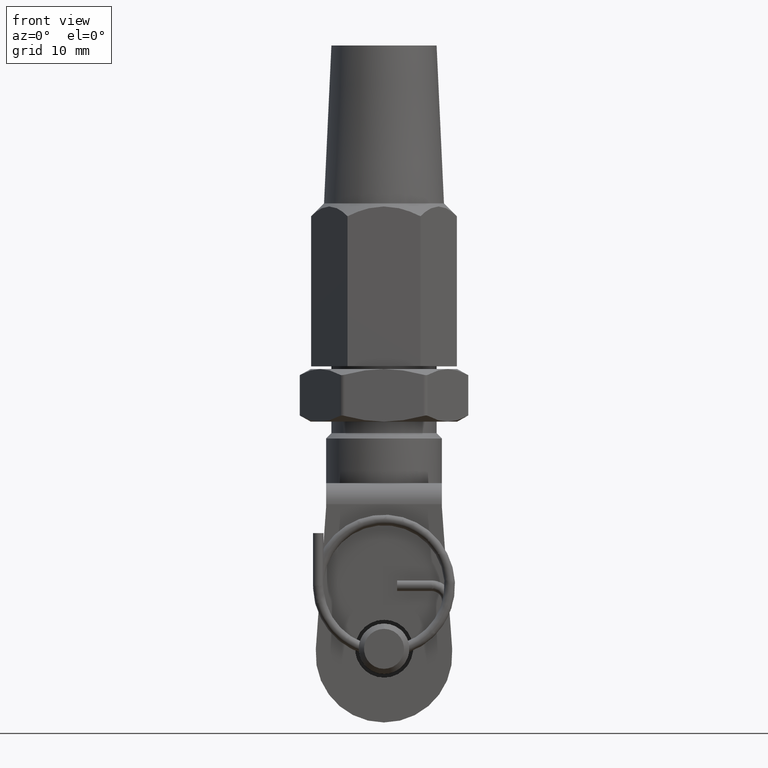
[diagram: clean part render]
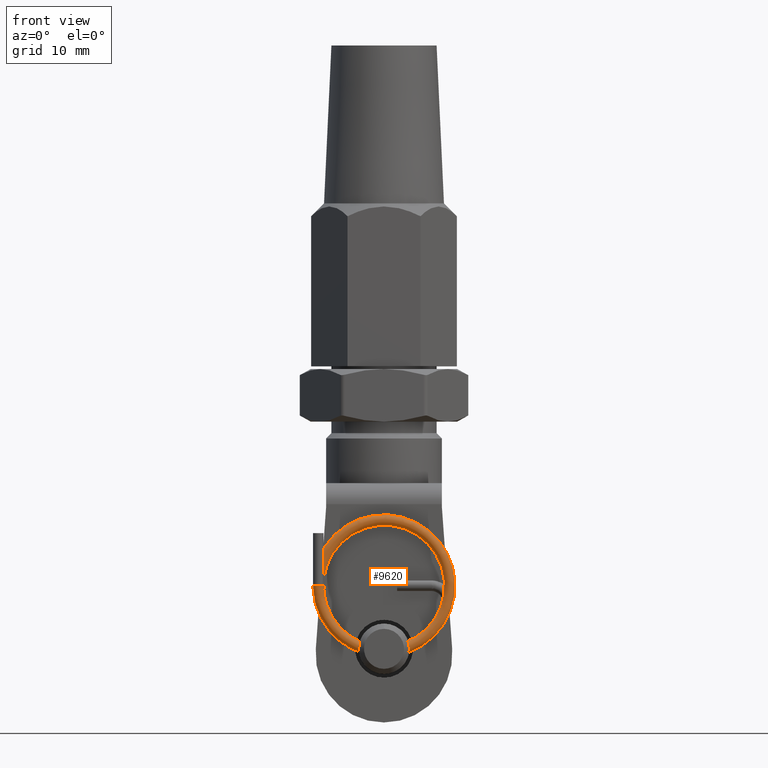
[diagram: same view with one face highlighted and labeled with its STEP entity id]
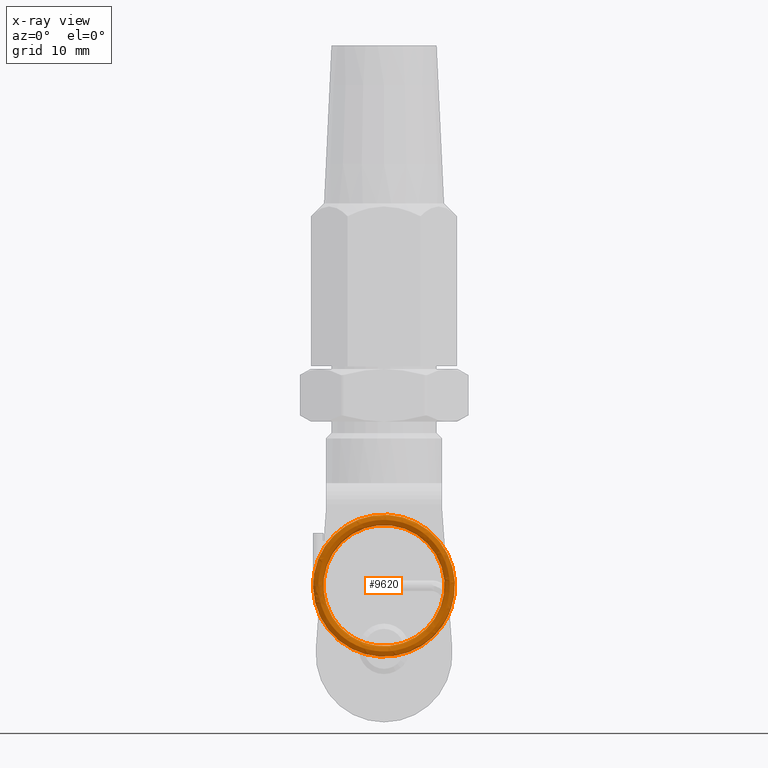
[diagram: x-ray of the same camera — body ghosted, the highlighted face saturated]
A machine part, front view. The second image highlights one B-rep face of the part: STEP entity #9620.
The next image is the same camera in x-ray: the body ghosted, the highlighted face saturated — about 0% of this face is hidden behind the body in this view.
In plain terms, the highlighted face is a freeform B-spline surface patch.
Its self-contained STEP definition (entity closure, byte-faithful):
#31 = CARTESIAN_POINT ( 'NONE',  ( -5.441579064462727500, 1.187529160050266700, 4.062136703513985500 ) ) ;
#47 = CARTESIAN_POINT ( 'NONE',  ( -4.331221511305992400, 0.4375430142686167500, -5.227130384884876700 ) ) ;
#63 = CARTESIAN_POINT ( 'NONE',  ( -0.6041354409410045800, 0.5000362530254085500, -5.752433656295322900 ) ) ;
#120 = CARTESIAN_POINT ( 'NONE',  ( -0.3628299699173395700, -0.9896070769223038700, 5.729623502599239700 ) ) ;
#203 = CARTESIAN_POINT ( 'NONE',  ( 6.219284082843962800, -0.1562625999831957800, 2.727413031565350600 ) ) ;
#219 = CARTESIAN_POINT ( 'NONE',  ( 0.0000000000000000000, 0.0000000000000000000, 5.750000000000000000 ) ) ;
#276 = CARTESIAN_POINT ( 'NONE',  ( -5.900905029850172000, -0.6562202629152964500, -3.360024513274996400 ) ) ;
#294 = CARTESIAN_POINT ( 'NONE',  ( -4.471573903326780700, 1.406285462311923000, -3.670256621723345400 ) ) ;
#295 = CARTESIAN_POINT ( 'NONE',  ( -5.776801956711722100, 0.2500470149679475700, 0.3022119201944986100 ) ) ;
#354 = CARTESIAN_POINT ( 'NONE',  ( 5.440416333594976500, 0.7187067907413397000, -1.966840749809478000 ) ) ;
#375 = CARTESIAN_POINT ( 'NONE',  ( -5.512074271685498200, 1.343743133500562700, -1.751591613145540200 ) ) ;
#425 = CARTESIAN_POINT ( 'NONE',  ( 3.207386461335977900, -0.06258316683072083500, 4.813319007481725400 ) ) ;
#442 = CARTESIAN_POINT ( 'NONE',  ( -3.981554088535226700, 1.125045686027654800, 4.196641099941761200 ) ) ;
#506 = CARTESIAN_POINT ( 'NONE',  ( -1.676113173776027100, -0.5313551425552357500, -5.536609384948985900 ) ) ;
#524 = CARTESIAN_POINT ( 'NONE',  ( -0.3626609497320603700, 1.010392924254964100, 5.729635557015131800 ) ) ;
#582 = CARTESIAN_POINT ( 'NONE',  ( -0.3627454598246998600, 0.01039292366633022500, 5.729629529807186600 ) ) ;
#602 = CARTESIAN_POINT ( 'NONE',  ( 5.440416333594976500, 0.7187067907413397000, -1.966840749809478000 ) ) ;
#606 = CARTESIAN_POINT ( 'NONE',  ( -1.765268013312727400, 0.4999413569686924600, -5.472399125603981700 ) ) ;
#666 = CARTESIAN_POINT ( 'NONE',  ( -5.078715623723190300, 0.3748956862803889400, -2.769901267912807900 ) ) ;
#682 = CARTESIAN_POINT ( 'NONE',  ( -3.707583798705629300, 2.437488582632009000, -4.437692126411943300 ) ) ;
#765 = CARTESIAN_POINT ( 'NONE',  ( -0.4260746672752514000, 1.010396192484729100, 6.726088150731299300 ) ) ;
#833 = CARTESIAN_POINT ( 'NONE',  ( 5.781930597318818400, 0.7812345651901191300, 0.1893963513100968800 ) ) ;
#949 = CARTESIAN_POINT ( 'NONE',  ( -6.592185133618673200, 0.2187768442755374000, 1.627421637519147000 ) ) ;
#1104 = CARTESIAN_POINT ( 'NONE',  ( -3.162533552695734800, 0.4374711890354099900, -6.008794826917685400 ) ) ;
#1169 = CARTESIAN_POINT ( 'NONE',  ( -5.768413662012996200, 2.281293708144756000, 0.4261018016242882900 ) ) ;
#1241 = CARTESIAN_POINT ( 'NONE',  ( 5.073022950310433800, 1.656262608710228100, -4.514580746070233600 ) ) ;
#1259 = CARTESIAN_POINT ( 'NONE',  ( -5.204474502986943900, 1.218784974276901500, 2.523784882517956100 ) ) ;
#1321 = CARTESIAN_POINT ( 'NONE',  ( -6.431391534622179100, 1.312470836483597500, -2.179376830597505900 ) ) ;
#1397 = CARTESIAN_POINT ( 'NONE',  ( 1.410824425741710400, 1.000026196949119300, 6.641891281598598900 ) ) ;
#1414 = CARTESIAN_POINT ( 'NONE',  ( -3.982274766724069000, 0.1250456852404546200, 4.195911854010626400 ) ) ;
#1477 = CARTESIAN_POINT ( 'NONE',  ( -4.568812251733743500, 2.156220269871580900, 5.023456004261397800 ) ) ;
#1560 = CARTESIAN_POINT ( 'NONE',  ( -6.592185133618673200, 0.2187768442755374000, 1.627421637519147000 ) ) ;
#1632 = CARTESIAN_POINT ( 'NONE',  ( 3.043968072372838400, 0.5937692972249085700, -6.070510499310630700 ) ) ;
#1648 = VERTEX_POINT ( 'NONE', #14731 ) ;
#1711 = CARTESIAN_POINT ( 'NONE',  ( -6.471092856655412000, 1.343737129270682800, -2.055319710555468600 ) ) ;
#1729 = CARTESIAN_POINT ( 'NONE',  ( -5.744769922462798400, 1.312419863309216300, -0.6793435576915143300 ) ) ;
#1781 = CARTESIAN_POINT ( 'NONE',  ( -6.562352871896614200, 0.2500251414270849800, 1.746865922445245900 ) ) ;
#1802 = CARTESIAN_POINT ( 'NONE',  ( 4.063354862979712900, 0.9062763232890418400, 4.117531124766744100 ) ) ;
#1847 = CARTESIAN_POINT ( 'NONE',  ( 2.640531181413660300, 0.9687256601209163200, 6.256406136703979800 ) ) ;
#1858 = CARTESIAN_POINT ( 'NONE',  ( -6.742519212140481800, 0.3125257928978171800, -0.8097608054514321400 ) ) ;
#1877 = CARTESIAN_POINT ( 'NONE',  ( 2.592093682690916900, 0.5936650322712939700, -5.171650189083027100 ) ) ;
#1920 = CARTESIAN_POINT ( 'NONE',  ( -6.772441566673308000, 1.281223154571503600, 0.4893273290642596900 ) ) ;
#1932 = CARTESIAN_POINT ( 'NONE',  ( 5.080295877680569600, -0.3437373074609514900, -4.506670577147571200 ) ) ;
#1951 = CARTESIAN_POINT ( 'NONE',  ( -1.776847038075101800, 1.499941355248576700, -5.468575191314405600 ) ) ;
#2012 = CARTESIAN_POINT ( 'NONE',  ( 0.1258732877574118000, 0.03122225646502603200, 6.789443212902812200 ) ) ;
#2090 = CARTESIAN_POINT ( 'NONE',  ( 6.707156331015178300, -0.2500000360073224600, -1.056102408432076900 ) ) ;
#2106 = CARTESIAN_POINT ( 'NONE',  ( 0.4867229057008709000, 1.531152565069917100, -5.764119409685600100 ) ) ;
#2167 = CARTESIAN_POINT ( 'NONE',  ( 5.712561653087942800, 0.7499706779955401800, -0.9047805028993938200 ) ) ;
#2185 = CARTESIAN_POINT ( 'NONE',  ( 3.521191040371833800, 0.6250093466858468400, -4.588477969329735700 ) ) ;
#2240 = CARTESIAN_POINT ( 'NONE',  ( -1.089976470491445000, 0.03122862588380296100, 5.688790872217274400 ) ) ;
#2264 = CARTESIAN_POINT ( 'NONE',  ( -0.6041354409410045800, 0.5000362530254084400, -5.752433656295322900 ) ) ;
#2321 = CARTESIAN_POINT ( 'NONE',  ( 4.058063111661145900, -0.09372363102530623100, 4.122726472269777200 ) ) ;
#2340 = CARTESIAN_POINT ( 'NONE',  ( -4.700216758189054800, 1.156198225385833400, 3.370176859125958700 ) ) ;
#2401 = CARTESIAN_POINT ( 'NONE',  ( -4.701022992481298100, 0.1561982214262561400, 3.369186665805714100 ) ) ;
#2417 = CARTESIAN_POINT ( 'NONE',  ( -5.478225000559529400, 1.312547089879217300, -1.857542548195082200 ) ) ;
#2478 = CARTESIAN_POINT ( 'NONE',  ( -5.769843571821948700, 0.2812936276429117100, 0.4051974145487882200 ) ) ;
#2497 = CARTESIAN_POINT ( 'NONE',  ( -4.240449616144220000, 1.406279342405069700, -5.303512910907827800 ) ) ;
#2578 = CARTESIAN_POINT ( 'NONE',  ( 4.128883592466214800, 1.624983949910775700, -5.390205334262574000 ) ) ;
#2656 = B_SPLINE_CURVE_WITH_KNOTS ( 'NONE', 3,
 ( #2838, #11909, #8567, #15568, #19306, #20987, #4917, #6733, #949, #4685, #13671, #15645, #2757, #17411, #11983, #1104, #15488, #4763, #21141, #4837, #4607, #17566, #6656, #19393, #16489, #21883, #19910, #9074, #18163, #9005, #10903, #9229, #1847, #14492, #12577, #5573, #5276, #8933, #21815, #31, #7395, #16256, #1920, #14336, #10986, #14641, #7091, #21741, #12734, #14566, #18085 ),
 .UNSPECIFIED., .F., .F.,
 ( 4, 1, 1, 1, 1, 1, 1, 1, 1, 1, 1, 1, 1, 1, 1, 1, 1, 1, 1, 1, 1, 1, 1, 1, 1, 1, 1, 1, 1, 1, 1, 1, 1, 1, 1, 1, 1, 1, 1, 1, 1, 1, 1, 1, 1, 1, 1, 1, 4 ),
 ( 0.0000000000000000000, 0.02078566451818509100, 0.04167103792903315700, 0.06250742885531192200, 0.08333457381428606400, 0.1041610744324122500, 0.1250055619324686200, 0.1458287117441812200, 0.1666715678880542100, 0.1874943420413610600, 0.2083390654163878900, 0.2291603406841008800, 0.2500054056506301700, 0.2708267274504983500, 0.2916716580503060400, 0.3124934474862337000, 0.3333375599432847900, 0.3541606275602851600, 0.3750032836527286700, 0.3958282987385753900, 0.4166688684605455200, 0.4374965070321431600, 0.4583343796531516000, 0.4791652709866297500, 0.4999998619717560000, 0.5208344534433141400, 0.5416653461979267200, 0.5625032212701754900, 0.5833308631160126800, 0.6041714372969011500, 0.6249964574715859400, 0.6458391200575672700, 0.6666621945574920900, 0.6875063155560520200, 0.7083281136610012400, 0.7291730548392965100, 0.7499943871204046700, 0.7708394647104771500, 0.7916607522630807500, 0.8125054901759173300, 0.8333282785652845700, 0.8541711514059914200, 0.8749943172571704700, 0.8958388227604090500, 0.9166653416743155700, 0.9374925075621334300, 0.9583289185481412800, 0.9792143130261046200, 1.000000000000000000 ),
 .UNSPECIFIED. ) ;
#2757 = CARTESIAN_POINT ( 'NONE',  ( -5.902166676849730300, 0.3437797329700074700, -3.357507611590548000 ) ) ;
#2838 = CARTESIAN_POINT ( 'NONE',  ( 0.0000000000000000000, 6.123233995736778400E-017, 6.750000000000000900 ) ) ;
#2986 = CARTESIAN_POINT ( 'NONE',  ( 4.068646614298279100, 1.906276277603390100, 4.112335777263713700 ) ) ;
#3064 = CARTESIAN_POINT ( 'NONE',  ( 5.832122125825822700, 1.687491370787316700, -3.476650465302142800 ) ) ;
#3149 = CARTESIAN_POINT ( 'NONE',  ( -1.280267883233952700, 1.031238448019529100, 6.678149746983963900 ) ) ;
#3229 = CARTESIAN_POINT ( 'NONE',  ( -4.340231899913667300, 1.437542848405738000, -5.219574383118118300 ) ) ;
#3306 = CARTESIAN_POINT ( 'NONE',  ( 4.770876570652825800, 0.9062307030830418800, 4.832760712680169500 ) ) ;
#3327 = CARTESIAN_POINT ( 'NONE',  ( -5.729641718034946200, 0.2811563800930856900, -0.7919916739184781300 ) ) ;
#3389 = CARTESIAN_POINT ( 'NONE',  ( 0.0000000000000000000, 6.123233995736775900E-017, 6.750000000000000900 ) ) ;
#3411 = CARTESIAN_POINT ( 'NONE',  ( 0.4910665759594586800, 0.5311525906914155200, -5.763879891249798600 ) ) ;
#3444 = CARTESIAN_POINT ( 'NONE',  ( 5.300006513148680700, 0.8437582648471606600, 2.318605575720139800 ) ) ;
#3468 = CARTESIAN_POINT ( 'NONE',  ( 5.835011938009481400, 0.6874913378976595900, -3.471831340879308700 ) ) ;
#3543 = CARTESIAN_POINT ( 'NONE',  ( -1.280521818907030000, 0.03123844625080474500, 6.678131636447593800 ) ) ;
#3560 = CARTESIAN_POINT ( 'NONE',  ( -2.794561613507868800, 1.468712730558542300, -5.073540742975773700 ) ) ;
#3617 = CARTESIAN_POINT ( 'NONE',  ( -5.447498188632676100, 0.1875291942309464700, 4.054433369613685800 ) ) ;
#3690 = CARTESIAN_POINT ( 'NONE',  ( 5.837901750193143600, -0.3125086949919980700, -3.467012216456475800 ) ) ;
#3706 = CARTESIAN_POINT ( 'NONE',  ( -2.794561613507868800, 1.468712730558542600, -5.073540742975773700 ) ) ;
#3712 = CARTESIAN_POINT ( 'NONE',  ( 5.300006513148680700, 0.8437582648471606600, 2.318605575720139800 ) ) ;
#3764 = CARTESIAN_POINT ( 'NONE',  ( -2.515358378620400800, -0.9375428407908805700, 6.305143298967657900 ) ) ;
#3846 = CARTESIAN_POINT ( 'NONE',  ( -6.167307750147347900, -0.8125256779523151200, 2.842475363280229800 ) ) ;
#3868 = CARTESIAN_POINT ( 'NONE',  ( -3.118548404185114800, 0.09365589173069328900, 4.872413445398431800 ) ) ;
#3893 = DIRECTION ( 'NONE',  ( 0.0000000000000000000, 0.0000000000000000000, -1.000000000000000000 ) ) ;
#3925 = CARTESIAN_POINT ( 'NONE',  ( -1.966650582368936000, -0.5312222131556110200, -6.499780097559080300 ) ) ;
#3943 = CARTESIAN_POINT ( 'NONE',  ( 3.213697587124481300, 0.9374168608231211500, 4.808968417003235600 ) ) ;
#4007 = CARTESIAN_POINT ( 'NONE',  ( -4.396063314682887600, -0.6249514116051371200, -3.759388271354208800 ) ) ;
#4029 = CARTESIAN_POINT ( 'NONE',  ( 4.320481233199958900, 1.656183049034582400, -3.846871557667483000 ) ) ;
#4087 = CARTESIAN_POINT ( 'NONE',  ( -1.679743037384885000, 0.4686448400844398500, -5.535360417540456300 ) ) ;
#4105 = CARTESIAN_POINT ( 'NONE',  ( -0.9790234605027314800, 1.062397054702993700, 5.700760101279437100 ) ) ;
#4135 = CARTESIAN_POINT ( 'NONE',  ( 0.0000000000000000000, 0.0000000000000000000, 6.250000000000000000 ) ) ;
#4169 = CARTESIAN_POINT ( 'NONE',  ( -5.590226924366201700, 0.2498943744827475900, 1.487865457158738900 ) ) ;
#4184 = CARTESIAN_POINT ( 'NONE',  ( -3.611236508358751900, 0.4061433781139247000, -4.518724630796103100 ) ) ;
#4214 = CARTESIAN_POINT ( 'NONE',  ( -2.085864712030765000, 1.499999999999996700, -6.419631484992303100 ) ) ;
#4239 = CARTESIAN_POINT ( 'NONE',  ( -5.253672491716504700, 0.1875214939739838500, 2.421324933074011200 ) ) ;
#4260 = CARTESIAN_POINT ( 'NONE',  ( 4.970694078700016200, 0.6874911657528245400, -2.957096164821417800 ) ) ;
#4321 = CARTESIAN_POINT ( 'NONE',  ( 3.525241303181866600, -0.3749906805285381800, -4.585365328727550400 ) ) ;
#4339 = CARTESIAN_POINT ( 'NONE',  ( -5.584681029427942500, 2.249894311145413300, 1.507551709401241200 ) ) ;
#4414 = CARTESIAN_POINT ( 'NONE',  ( -6.726143406399407000, 1.281276786324140300, -0.9289999423778553300 ) ) ;
#4607 = CARTESIAN_POINT ( 'NONE',  ( 3.043968072372838400, 0.5937692972249085700, -6.070510499310630700 ) ) ;
#4685 = CARTESIAN_POINT ( 'NONE',  ( -6.781384187061188000, 0.2499748927732847500, 0.3562919820453353500 ) ) ;
#4763 = CARTESIAN_POINT ( 'NONE',  ( -0.7106834533093400200, 0.4999738046348306000, -6.752782715170990700 ) ) ;
#4826 = CARTESIAN_POINT ( 'NONE',  ( 0.1214243924504941100, 2.031296488606427500, 5.783387056670939300 ) ) ;
#4837 = CARTESIAN_POINT ( 'NONE',  ( 1.842310656715859600, 0.5624780457383109500, -6.535229589347594900 ) ) ;
#4904 = CARTESIAN_POINT ( 'NONE',  ( 1.837892090312905200, 1.562478065972044700, -6.536500023734348000 ) ) ;
#4917 = CARTESIAN_POINT ( 'NONE',  ( -5.519246302094050100, 0.1562628704106008000, 3.954402877894930500 ) ) ;
#4978 = CARTESIAN_POINT ( 'NONE',  ( -4.478896364657767700, 2.406285539889395900, -3.661389053334111600 ) ) ;
#5056 = CARTESIAN_POINT ( 'NONE',  ( -5.973171136515426300, 2.375004939583249500, -3.230322996337066300 ) ) ;
#5134 = CARTESIAN_POINT ( 'NONE',  ( -4.575767142718350800, 1.156220266169491400, 5.017049322567236100 ) ) ;
#5155 = CARTESIAN_POINT ( 'NONE',  ( -4.398096962512643600, 0.3750485891087351200, -3.757091625925831100 ) ) ;
#5215 = CARTESIAN_POINT ( 'NONE',  ( -6.474398725223028200, 2.343737170385926700, -2.044843550030227300 ) ) ;
#5276 = CARTESIAN_POINT ( 'NONE',  ( -2.390971971781386400, 1.093720647268486600, 6.355617985894871100 ) ) ;
#5291 = CARTESIAN_POINT ( 'NONE',  ( -5.441579064462727500, 1.187529160050266700, 4.062136703513985500 ) ) ;
#5361 = CARTESIAN_POINT ( 'NONE',  ( -5.164140359918112800, 0.3749704526932209300, -4.409213065106646600 ) ) ;
#5434 = CARTESIAN_POINT ( 'NONE',  ( 0.0000000000000000000, -1.000000000000001300, 5.750000000000000000 ) ) ;
#5456 = AXIS2_PLACEMENT_3D ( 'NONE', #4135, #20363, #3893 ) ;
#5488 = EDGE_CURVE ( 'NONE', #1648, #9729, #7800, .T. ) ;
#5513 = CARTESIAN_POINT ( 'NONE',  ( -6.592751122351995000, -0.7812231576705021000, 1.625720104348042700 ) ) ;
#5573 = CARTESIAN_POINT ( 'NONE',  ( -1.150928501685068800, 1.062528812855611200, 6.691980074444464000 ) ) ;
#5590 = CARTESIAN_POINT ( 'NONE',  ( -4.235437301621599800, -0.5937206381166815200, -5.307888915578568700 ) ) ;
#5675 = CARTESIAN_POINT ( 'NONE',  ( -3.556784159719542000, 0.1250295587486781600, 5.784526477061084500 ) ) ;
#5689 = CARTESIAN_POINT ( 'NONE',  ( -3.698573410097952200, 1.437488748494887900, -4.445248128178698200 ) ) ;
#5690 = CARTESIAN_POINT ( 'NONE',  ( -3.982274766724069000, 0.1250456852404546200, 4.195911854010626400 ) ) ;
#5747 = CARTESIAN_POINT ( 'NONE',  ( 2.633215280549916900, -0.03127430232641117300, 6.259455729474644200 ) ) ;
#5766 = CARTESIAN_POINT ( 'NONE',  ( 2.587697699229396500, 1.593664998108858600, -5.173726479975989000 ) ) ;
#5830 = CARTESIAN_POINT ( 'NONE',  ( 0.4954102462180465200, -0.4688473836870859500, -5.763640372813998900 ) ) ;
#5852 = CARTESIAN_POINT ( 'NONE',  ( 4.967804266516354900, 1.687491198642482100, -2.961915289244252000 ) ) ;
#5905 = CARTESIAN_POINT ( 'NONE',  ( -5.508768403117876700, 0.3437430923853184700, -1.762067773670780200 ) ) ;
#5922 = CARTESIAN_POINT ( 'NONE',  ( -5.204474502986943900, 1.218784974276901500, 2.523784882517956100 ) ) ;
#5983 = CARTESIAN_POINT ( 'NONE',  ( 5.713565699973643500, -0.2500293583846207000, -0.8987327506098741200 ) ) ;
#6000 = CARTESIAN_POINT ( 'NONE',  ( 2.592093682690916900, 0.5936650322712939700, -5.171650189083027100 ) ) ;
#6064 = CARTESIAN_POINT ( 'NONE',  ( -4.398096962512643600, 0.3750485891087351200, -3.757091625925831100 ) ) ;
#6083 = CARTESIAN_POINT ( 'NONE',  ( -5.587453976897068100, 1.249894342814080100, 1.497708583279989900 ) ) ;
#6091 = CARTESIAN_POINT ( 'NONE',  ( -1.776847038075101800, 1.499941355248576700, -5.468575191314405600 ) ) ;
#6148 = CARTESIAN_POINT ( 'NONE',  ( -3.118548404185114800, 0.09365589173069328900, 4.872413445398431800 ) ) ;
#6166 = CARTESIAN_POINT ( 'NONE',  ( 5.642600073833265600, 1.812450227232793600, 1.269843925362312800 ) ) ;
#6241 = CARTESIAN_POINT ( 'NONE',  ( -1.788426062837476600, 2.499941353528463600, -5.464751257024829600 ) ) ;
#6586 = CARTESIAN_POINT ( 'NONE',  ( -3.611236508358752300, 0.4061433781139247000, -4.518724630796103100 ) ) ;
#6645 = CARTESIAN_POINT ( 'NONE',  ( -6.591619144885353200, 1.218776846221576700, 1.629123170690252500 ) ) ;
#6656 = CARTESIAN_POINT ( 'NONE',  ( 5.076659413995502100, 0.6562626506246381800, -4.510625661608902000 ) ) ;
#6723 = CARTESIAN_POINT ( 'NONE',  ( 0.1427437367318084000, 2.031222203956173400, 6.789197826762976000 ) ) ;
#6733 = CARTESIAN_POINT ( 'NONE',  ( -6.166688178066353400, 0.1874743094842342100, 2.843884023433202100 ) ) ;
#6793 = CARTESIAN_POINT ( 'NONE',  ( 6.224815902813176600, 1.843737299820321000, 2.714758799226693900 ) ) ;
#6801 = VERTEX_POINT ( 'NONE', #14396 ) ;
#6872 = CARTESIAN_POINT ( 'NONE',  ( -4.674523548757377100, 0.1249950493702555900, 4.925860726716836200 ) ) ;
#6890 = CARTESIAN_POINT ( 'NONE',  ( 0.0000000000000000000, 0.0000000000000000000, 5.750000000000000000 ) ) ;
#6951 = CARTESIAN_POINT ( 'NONE',  ( -0.7106834533093400200, 0.4999738046348305400, -6.752782715170990700 ) ) ;
#7031 = CARTESIAN_POINT ( 'NONE',  ( -3.162533552695734800, 0.4374711890354099900, -6.008794826917685400 ) ) ;
#7047 = CARTESIAN_POINT ( 'NONE',  ( -5.587453976897068100, 1.249894342814080100, 1.497708583279989700 ) ) ;
#7091 = CARTESIAN_POINT ( 'NONE',  ( -5.249871242769508200, 1.406223760836305100, -4.307963377621542900 ) ) ;
#7105 = CARTESIAN_POINT ( 'NONE',  ( -6.743677460552943300, 1.312525692545144700, -0.7990830678339943000 ) ) ;
#7126 = CARTESIAN_POINT ( 'NONE',  ( 4.766768929291375300, 0.8749320095637024300, 3.275794623423208900 ) ) ;
#7181 = CARTESIAN_POINT ( 'NONE',  ( 6.787465537567443100, 0.7812454706077982500, 0.2220352492838381100 ) ) ;
#7201 = CARTESIAN_POINT ( 'NONE',  ( 3.213697587124481300, 0.9374168608231211500, 4.808968417003235600 ) ) ;
#7254 = CARTESIAN_POINT ( 'NONE',  ( -1.280775754580107700, -0.9687615555179196500, 6.678113525911222800 ) ) ;
#7276 = CARTESIAN_POINT ( 'NONE',  ( 1.203032054334925500, 0.9999051038055339900, 5.657577795917790200 ) ) ;
#7331 = CARTESIAN_POINT ( 'NONE',  ( 6.620884729592963100, -0.1874913740074923800, 1.505283438486918500 ) ) ;
#7395 = CARTESIAN_POINT ( 'NONE',  ( -6.108980775299485800, 1.218723213583165800, 2.964149944835630500 ) ) ;
#7410 = CARTESIAN_POINT ( 'NONE',  ( -2.144385526082222400, -0.9375473856226662600, 5.370431626564336400 ) ) ;
#7489 = CARTESIAN_POINT ( 'NONE',  ( -1.090230406164522000, -0.9687713758849212400, 5.688772761680902500 ) ) ;
#7563 = CARTESIAN_POINT ( 'NONE',  ( -6.773156521577782900, 0.2812231143205806700, 0.4788751355265094500 ) ) ;
#7583 = CARTESIAN_POINT ( 'NONE',  ( 1.203032054334925500, 0.9999051038055339900, 5.657577795917790200 ) ) ;
#7648 = CARTESIAN_POINT ( 'NONE',  ( 1.195059973423136000, -9.491411251417457900E-005, 5.659399372309145800 ) ) ;
#7668 = CARTESIAN_POINT ( 'NONE',  ( 4.063354862979712900, 0.9062763232890418400, 4.117531124766744100 ) ) ;
#7683 = FACE_OUTER_BOUND ( 'NONE', #7822, .T. ) ;
#7723 = CARTESIAN_POINT ( 'NONE',  ( 4.973583890883674900, -0.3125088671368328500, -2.952277040398584100 ) ) ;
#7744 = CARTESIAN_POINT ( 'NONE',  ( -5.028449006423197300, 0.3436421721271117900, -2.858813384152024500 ) ) ;
#7800 = CIRCLE ( 'NONE', #5456, 0.5000000000000004400 ) ;
#7807 = CARTESIAN_POINT ( 'NONE',  ( -4.640435634080177800, 0.1873942960856011000, 3.453805558228667300 ) ) ;
#7822 = EDGE_LOOP ( 'NONE', ( #18754, #22752, #21732, #16395 ) ) ;
#7828 = CARTESIAN_POINT ( 'NONE',  ( -5.614644336910297200, 1.218647688145964200, 1.389153391318913400 ) ) ;
#7882 = CARTESIAN_POINT ( 'NONE',  ( 4.324117696885025500, 0.6561830909489927400, -3.842916473206150000 ) ) ;
#7901 = CARTESIAN_POINT ( 'NONE',  ( -4.398096962512643600, 0.3750485891087351200, -3.757091625925831100 ) ) ;
#7964 = CARTESIAN_POINT ( 'NONE',  ( -1.765268013312727400, 0.4999413569686903500, -5.472399125603981700 ) ) ;
#7984 = CARTESIAN_POINT ( 'NONE',  ( 3.039572088911319400, 1.593769263062472900, -6.072586790203592600 ) ) ;
#8062 = CARTESIAN_POINT ( 'NONE',  ( -3.013917780156420500, 2.124892759045744500, 4.936984192077078500 ) ) ;
#8200 =( BOUNDED_SURFACE ( )  B_SPLINE_SURFACE ( 3, 3, ( 
 ( #219, #16367, #12913, #20252, #3868, #5690, #18405, #9340, #22081, #295, #14442, #16287, #7744, #7901, #4184, #16917, #16990, #2264, #11327, #9576, #6000, #2185, #9422, #4260, #602, #18731, #22401, #18495, #15072, #20565, #7668, #3943, #11255, #7583, #14992, #4105, #16839, #9656, #11410, #11494, #5922, #6083, #18656, #20412, #375, #22322, #9506, #20490, #20335, #16686, #18812 ),
 ( #22244, #524, #16754, #13239, #20642, #442, #2340, #9732, #7828, #13315, #22487, #2417, #13161, #15152, #11567, #14916, #22162, #12995, #2106, #14840, #5766, #13076, #4029, #5852, #18570, #15226, #22565, #6166, #13890, #15714, #2986, #21291, #23055, #23135, #4826, #17709, #17553, #8062, #11642, #18890, #18973, #4339, #1169, #10293, #17154, #15306, #4978, #682, #21374, #14039, #6241 ),
 ( #19384, #765, #3149, #10211, #10378, #12199, #20807, #17068, #6645, #8555, #4414, #1321, #8472, #21211, #2497, #12122, #13964, #10455, #23216, #4904, #7984, #2578, #1241, #3064, #20717, #9814, #15875, #13488, #6793, #19534, #22972, #15794, #17627, #12053, #6723, #13398, #19456, #8637, #1477, #18098, #17787, #21454, #21602, #10698, #5215, #5056, #17867, #12441, #10539, #23449, #15953 ),
 ( #3389, #19851, #3543, #17946, #14357, #6872, #19611, #21681, #1560, #12282, #10772, #10848, #16270, #5361, #12520, #7031, #8726, #6951, #14274, #23298, #1632, #12365, #10618, #3468, #16119, #8947, #7181, #19772, #16191, #14191, #3306, #23524, #8879, #1397, #12595, #14116, #19924, #9020, #5134, #5291, #18026, #16039, #19696, #7105, #1711, #14428, #21753, #3229, #8801, #21531, #23378 ),
 ( #14821, #21986, #7254, #3764, #20318, #14578, #11156, #3846, #5513, #16426, #12822, #22143, #276, #20153, #5590, #14657, #3925, #10917, #18241, #12979, #11074, #9087, #1932, #3690, #9405, #2090, #20231, #7331, #203, #12743, #16576, #16665, #5747, #9241, #2012, #18475, #20074, #5675, #9168, #3617, #16503, #1781, #7563, #1858, #16354, #21899, #18314, #47, #23594, #11004, #9324 ),
 ( #5434, #120, #7489, #7410, #22061, #12896, #14735, #14504, #18391, #12674, #18172, #19998, #21827, #4007, #13137, #15055, #506, #16740, #5830, #13382, #18547, #4321, #9713, #7723, #20543, #5983, #20470, #22385, #20701, #13298, #2321, #425, #17048, #7648, #20395, #9638, #13218, #9796, #11550, #7807, #16897, #4169, #2478, #22224, #5905, #666, #11475, #9484, #18714, #14975, #7964 ),
 ( #16819, #582, #2240, #15131, #6148, #22467, #2401, #4239, #18872, #18634, #16976, #9557, #14896, #6064, #13057, #15205, #4087, #11310, #22303, #18796, #11393, #11234, #7882, #20624, #354, #2167, #833, #15844, #3444, #15107, #15819, #12386, #14680, #14844, #10202, #19220, #20520, #19863, #8653, #14748, #1259, #11173, #12691, #23612, #9339, #14522, #294, #5689, #3706, #16522, #1951 ) ),
 .UNSPECIFIED., .T., .F., .F. ) 
 B_SPLINE_SURFACE_WITH_KNOTS ( ( 4, 3, 4 ),
 ( 4, 1, 1, 1, 1, 1, 1, 1, 1, 1, 1, 1, 1, 1, 1, 1, 1, 1, 1, 1, 1, 1, 1, 1, 1, 1, 1, 1, 1, 1, 1, 1, 1, 1, 1, 1, 1, 1, 1, 1, 1, 1, 1, 1, 1, 1, 1, 1, 4 ),
 ( 0.0000000000000000000, 0.5000000000000000000, 1.000000000000000000 ),
 ( 0.0000000000000000000, 0.02078566451818509100, 0.04167103792903315700, 0.06250742885531192200, 0.08333457381428606400, 0.1041610744324122500, 0.1250055619324686200, 0.1458287117441812200, 0.1666715678880542100, 0.1874943420413610600, 0.2083390654163878900, 0.2291603406841008800, 0.2500054056506301700, 0.2708267274504983500, 0.2916716580503060400, 0.3124934474862337000, 0.3333375599432847900, 0.3541606275602851600, 0.3750032836527286700, 0.3958282987385753900, 0.4166688684605455200, 0.4374965070321431600, 0.4583343796531516000, 0.4791652709866297500, 0.4999998619717560000, 0.5208344534433141400, 0.5416653461979267200, 0.5625032212701754900, 0.5833308631160126800, 0.6041714372969011500, 0.6249964574715859400, 0.6458391200575672700, 0.6666621945574920900, 0.6875063155560520200, 0.7083281136610012400, 0.7291730548392965100, 0.7499943871204046700, 0.7708394647104771500, 0.7916607522630807500, 0.8125054901759173300, 0.8333282785652845700, 0.8541711514059914200, 0.8749943172571704700, 0.8958388227604090500, 0.9166653416743155700, 0.9374925075621334300, 0.9583289185481412800, 0.9792143130261046200, 1.000000000000000000 ),
 .UNSPECIFIED. ) 
 GEOMETRIC_REPRESENTATION_ITEM ( )  RATIONAL_B_SPLINE_SURFACE ( (
 ( 1.000000000000000000, 1.000000000000000000, 0.9999999999999997800, 1.000000000000000200, 0.9999999999999997800, 1.000000000000000000, 1.000000000000000000, 1.000000000000000000, 1.000000000000000200, 0.9999999999999997800, 1.000000000000000200, 1.000000000000000000, 1.000000000000000200, 0.9999999999999997800, 1.000000000000000400, 1.000000000000000200, 0.9999999999999996700, 1.000000000000000200, 0.9999999999999997800, 1.000000000000000200, 1.000000000000000000, 1.000000000000000000, 1.000000000000000000, 1.000000000000000200, 0.9999999999999997800, 1.000000000000000200, 1.000000000000000000, 1.000000000000000000, 1.000000000000000000, 1.000000000000000000, 0.9999999999999997800, 1.000000000000000200, 0.9999999999999997800, 1.000000000000000200, 0.9999999999999997800, 1.000000000000000400, 1.000000000000000400, 0.9999999999999997800, 1.000000000000000000, 1.000000000000000000, 0.9999999999999997800, 1.000000000000000200, 1.000000000000000200, 1.000000000000000200, 0.9999999999999997800, 1.000000000000000200, 0.9999999999999997800, 0.9999999999999997800, 1.000000000000000200, 1.000000000000000000, 1.000000000000000000),
 ( 0.3333333333333333700, 0.3333333333333333700, 0.3333333333333333100, 0.3333333333333334300, 0.3333333333333333100, 0.3333333333333334300, 0.3333333333333333700, 0.3333333333333333100, 0.3333333333333334800, 0.3333333333333333100, 0.3333333333333334300, 0.3333333333333333100, 0.3333333333333334300, 0.3333333333333333700, 0.3333333333333334300, 0.3333333333333334300, 0.3333333333333332600, 0.3333333333333334300, 0.3333333333333333100, 0.3333333333333334800, 0.3333333333333333100, 0.3333333333333333700, 0.3333333333333333700, 0.3333333333333334300, 0.3333333333333333700, 0.3333333333333333700, 0.3333333333333334300, 0.3333333333333333100, 0.3333333333333333700, 0.3333333333333334300, 0.3333333333333333100, 0.3333333333333334800, 0.3333333333333332600, 0.3333333333333334800, 0.3333333333333333100, 0.3333333333333334800, 0.3333333333333335900, 0.3333333333333332600, 0.3333333333333333700, 0.3333333333333333100, 0.3333333333333333700, 0.3333333333333333100, 0.3333333333333334800, 0.3333333333333334300, 0.3333333333333333700, 0.3333333333333333700, 0.3333333333333333100, 0.3333333333333332600, 0.3333333333333334300, 0.3333333333333333700, 0.3333333333333333700),
 ( 0.3333333333333333700, 0.3333333333333333700, 0.3333333333333333100, 0.3333333333333334300, 0.3333333333333333100, 0.3333333333333334300, 0.3333333333333333700, 0.3333333333333333100, 0.3333333333333334800, 0.3333333333333333100, 0.3333333333333334300, 0.3333333333333333100, 0.3333333333333334300, 0.3333333333333333700, 0.3333333333333334300, 0.3333333333333334300, 0.3333333333333332600, 0.3333333333333334300, 0.3333333333333333100, 0.3333333333333334800, 0.3333333333333333100, 0.3333333333333333700, 0.3333333333333333700, 0.3333333333333334300, 0.3333333333333333700, 0.3333333333333333700, 0.3333333333333334300, 0.3333333333333333100, 0.3333333333333333700, 0.3333333333333334300, 0.3333333333333333100, 0.3333333333333334800, 0.3333333333333332600, 0.3333333333333334800, 0.3333333333333333100, 0.3333333333333334800, 0.3333333333333335900, 0.3333333333333332600, 0.3333333333333333700, 0.3333333333333333100, 0.3333333333333333700, 0.3333333333333333100, 0.3333333333333334800, 0.3333333333333334300, 0.3333333333333333700, 0.3333333333333333700, 0.3333333333333333100, 0.3333333333333332600, 0.3333333333333334300, 0.3333333333333333700, 0.3333333333333333700),
 ( 1.000000000000000000, 1.000000000000000000, 0.9999999999999997800, 1.000000000000000200, 0.9999999999999997800, 1.000000000000000000, 1.000000000000000000, 1.000000000000000000, 1.000000000000000200, 0.9999999999999997800, 1.000000000000000200, 1.000000000000000000, 1.000000000000000200, 0.9999999999999997800, 1.000000000000000400, 1.000000000000000200, 0.9999999999999996700, 1.000000000000000200, 0.9999999999999997800, 1.000000000000000200, 1.000000000000000000, 1.000000000000000000, 1.000000000000000000, 1.000000000000000200, 0.9999999999999997800, 1.000000000000000200, 1.000000000000000000, 1.000000000000000000, 1.000000000000000000, 1.000000000000000000, 0.9999999999999997800, 1.000000000000000200, 0.9999999999999997800, 1.000000000000000200, 0.9999999999999997800, 1.000000000000000400, 1.000000000000000400, 0.9999999999999997800, 1.000000000000000000, 1.000000000000000000, 0.9999999999999997800, 1.000000000000000200, 1.000000000000000200, 1.000000000000000200, 0.9999999999999997800, 1.000000000000000200, 0.9999999999999997800, 0.9999999999999997800, 1.000000000000000200, 1.000000000000000000, 1.000000000000000000),
 ( 0.3333333333333333700, 0.3333333333333333700, 0.3333333333333333100, 0.3333333333333334300, 0.3333333333333333100, 0.3333333333333334300, 0.3333333333333333700, 0.3333333333333333100, 0.3333333333333334800, 0.3333333333333333100, 0.3333333333333334300, 0.3333333333333333100, 0.3333333333333334300, 0.3333333333333333700, 0.3333333333333334300, 0.3333333333333334300, 0.3333333333333332600, 0.3333333333333334300, 0.3333333333333333100, 0.3333333333333334800, 0.3333333333333333100, 0.3333333333333333700, 0.3333333333333333700, 0.3333333333333334300, 0.3333333333333333700, 0.3333333333333333700, 0.3333333333333334300, 0.3333333333333333100, 0.3333333333333333700, 0.3333333333333334300, 0.3333333333333333100, 0.3333333333333334800, 0.3333333333333332600, 0.3333333333333334800, 0.3333333333333333100, 0.3333333333333334800, 0.3333333333333335900, 0.3333333333333332600, 0.3333333333333333700, 0.3333333333333333100, 0.3333333333333333700, 0.3333333333333333100, 0.3333333333333334800, 0.3333333333333334300, 0.3333333333333333700, 0.3333333333333333700, 0.3333333333333333100, 0.3333333333333332600, 0.3333333333333334300, 0.3333333333333333700, 0.3333333333333333700),
 ( 0.3333333333333333700, 0.3333333333333333700, 0.3333333333333333100, 0.3333333333333334300, 0.3333333333333333100, 0.3333333333333334300, 0.3333333333333333700, 0.3333333333333333100, 0.3333333333333334800, 0.3333333333333333100, 0.3333333333333334300, 0.3333333333333333100, 0.3333333333333334300, 0.3333333333333333700, 0.3333333333333334300, 0.3333333333333334300, 0.3333333333333332600, 0.3333333333333334300, 0.3333333333333333100, 0.3333333333333334800, 0.3333333333333333100, 0.3333333333333333700, 0.3333333333333333700, 0.3333333333333334300, 0.3333333333333333700, 0.3333333333333333700, 0.3333333333333334300, 0.3333333333333333100, 0.3333333333333333700, 0.3333333333333334300, 0.3333333333333333100, 0.3333333333333334800, 0.3333333333333332600, 0.3333333333333334800, 0.3333333333333333100, 0.3333333333333334800, 0.3333333333333335900, 0.3333333333333332600, 0.3333333333333333700, 0.3333333333333333100, 0.3333333333333333700, 0.3333333333333333100, 0.3333333333333334800, 0.3333333333333334300, 0.3333333333333333700, 0.3333333333333333700, 0.3333333333333333100, 0.3333333333333332600, 0.3333333333333334300, 0.3333333333333333700, 0.3333333333333333700),
 ( 1.000000000000000000, 1.000000000000000000, 0.9999999999999997800, 1.000000000000000200, 0.9999999999999997800, 1.000000000000000000, 1.000000000000000000, 1.000000000000000000, 1.000000000000000200, 0.9999999999999997800, 1.000000000000000200, 1.000000000000000000, 1.000000000000000200, 0.9999999999999997800, 1.000000000000000400, 1.000000000000000200, 0.9999999999999996700, 1.000000000000000200, 0.9999999999999997800, 1.000000000000000200, 1.000000000000000000, 1.000000000000000000, 1.000000000000000000, 1.000000000000000200, 0.9999999999999997800, 1.000000000000000200, 1.000000000000000000, 1.000000000000000000, 1.000000000000000000, 1.000000000000000000, 0.9999999999999997800, 1.000000000000000200, 0.9999999999999997800, 1.000000000000000200, 0.9999999999999997800, 1.000000000000000400, 1.000000000000000400, 0.9999999999999997800, 1.000000000000000000, 1.000000000000000000, 0.9999999999999997800, 1.000000000000000200, 1.000000000000000200, 1.000000000000000200, 0.9999999999999997800, 1.000000000000000200, 0.9999999999999997800, 0.9999999999999997800, 1.000000000000000200, 1.000000000000000000, 1.000000000000000000) ) ) 
 REPRESENTATION_ITEM ( '' )  SURFACE ( )  );
#8240 = VERTEX_POINT ( 'NONE', #4214 ) ;
#8472 = CARTESIAN_POINT ( 'NONE',  ( -5.903428323849291300, 1.343779728855311300, -3.354990709906099600 ) ) ;
#8555 = CARTESIAN_POINT ( 'NONE',  ( -6.781328110369010200, 1.249974889369962900, 0.3583385954038432200 ) ) ;
#8567 = CARTESIAN_POINT ( 'NONE',  ( -1.280521818907030000, 0.03123844625080474100, 6.678131636447593800 ) ) ;
#8637 = CARTESIAN_POINT ( 'NONE',  ( -3.540951132955919300, 2.125029540212418900, 5.793909329192026700 ) ) ;
#8653 = CARTESIAN_POINT ( 'NONE',  ( -3.898917781887391200, 1.156299182260947400, 4.272768827389623600 ) ) ;
#8657 = CARTESIAN_POINT ( 'NONE',  ( -2.143895823114374100, 0.06245260768009560500, 5.370603954657442900 ) ) ;
#8726 = CARTESIAN_POINT ( 'NONE',  ( -1.970280445977794500, 0.4687777694840652400, -6.498531130150551500 ) ) ;
#8744 = CARTESIAN_POINT ( 'NONE',  ( -4.701022992481298100, 0.1561982214262561400, 3.369186665805714100 ) ) ;
#8801 = CARTESIAN_POINT ( 'NONE',  ( -3.281504741595980200, 1.468761554945645900, -5.955577626693389500 ) ) ;
#8879 = CARTESIAN_POINT ( 'NONE',  ( 2.640531181413660300, 0.9687256601209163200, 6.256406136703979800 ) ) ;
#8893 = CARTESIAN_POINT ( 'NONE',  ( 5.712561653087942800, 0.7499706779955400700, -0.9047805028993938200 ) ) ;
#8933 = CARTESIAN_POINT ( 'NONE',  ( -3.548867646337728200, 1.125029549480548200, 5.789217903126552900 ) ) ;
#8947 = CARTESIAN_POINT ( 'NONE',  ( 6.706152284129472300, 0.7500000003728384300, -1.062150160721596600 ) ) ;
#8964 = CARTESIAN_POINT ( 'NONE',  ( -0.9790234605027314800, 1.062397054702993700, 5.700760101279437100 ) ) ;
#9005 = CARTESIAN_POINT ( 'NONE',  ( 5.595356843255422600, 0.8750160783074341100, 3.846282845770700600 ) ) ;
#9020 = CARTESIAN_POINT ( 'NONE',  ( -3.548867646337728200, 1.125029549480548200, 5.789217903126552900 ) ) ;
#9074 = CARTESIAN_POINT ( 'NONE',  ( 6.622281004474031000, 0.8125086629175108900, 1.498790001570884800 ) ) ;
#9087 = CARTESIAN_POINT ( 'NONE',  ( 4.136984118086285600, -0.3750161045179943900, -5.383980053058209600 ) ) ;
#9168 = CARTESIAN_POINT ( 'NONE',  ( -4.582722033702952800, 0.1562202624674018700, 5.010642640873072700 ) ) ;
#9229 = CARTESIAN_POINT ( 'NONE',  ( 3.771638516686123900, 0.9375219555347469300, 5.646067412747841600 ) ) ;
#9241 = CARTESIAN_POINT ( 'NONE',  ( 1.402852344829922200, 2.617903107069341000E-005, 6.643712857989954500 ) ) ;
#9324 = CARTESIAN_POINT ( 'NONE',  ( -2.074285687268390400, 0.5000000017201102800, -6.423455419281880000 ) ) ;
#9339 = CARTESIAN_POINT ( 'NONE',  ( -5.512074271685498200, 1.343743133500562700, -1.751591613145540200 ) ) ;
#9340 = CARTESIAN_POINT ( 'NONE',  ( -5.253672491716504700, 0.1875214939739838500, 2.421324933074011200 ) ) ;
#9405 = CARTESIAN_POINT ( 'NONE',  ( 6.388709357530210300, -0.2812454220940704400, -2.303098536974070000 ) ) ;
#9422 = CARTESIAN_POINT ( 'NONE',  ( 4.324117696885025500, 0.6561830909489927400, -3.842916473206150000 ) ) ;
#9484 = CARTESIAN_POINT ( 'NONE',  ( -3.689563021490275900, 0.4374889143577672100, -4.452804129945453900 ) ) ;
#9506 = CARTESIAN_POINT ( 'NONE',  ( -4.471573903326780700, 1.406285462311923000, -3.670256621723345400 ) ) ;
#9557 = CARTESIAN_POINT ( 'NONE',  ( -5.477351939014163800, 0.3125470956615854500, -1.859946981489535300 ) ) ;
#9576 = CARTESIAN_POINT ( 'NONE',  ( 1.570355799504873600, 0.5625244956961914500, -5.566687708908124100 ) ) ;
#9620 = ADVANCED_FACE ( 'NONE', ( #7683 ), #8200, .F. ) ;
#9638 = CARTESIAN_POINT ( 'NONE',  ( -0.9876092946398300500, 0.06239705055849308100, 5.699419426934001700 ) ) ;
#9656 = CARTESIAN_POINT ( 'NONE',  ( -3.021834293538230700, 1.124892768313874100, 4.932292766011608300 ) ) ;
#9713 = CARTESIAN_POINT ( 'NONE',  ( 4.327754160570094700, -0.3438168671365968200, -3.838961388744818800 ) ) ;
#9729 = VERTEX_POINT ( 'NONE', #18404 ) ;
#9732 = CARTESIAN_POINT ( 'NONE',  ( -5.253052919635507600, 1.187521481410532800, 2.422733593226984000 ) ) ;
#9787 =( BOUNDED_CURVE ( )  B_SPLINE_CURVE ( 3, ( #6091, #606, #11574, #11811 ),
 .UNSPECIFIED., .F., .F. ) 
 B_SPLINE_CURVE_WITH_KNOTS ( ( 4, 4 ),
 ( 0.0000000000000000000, 0.4999999999999996700 ),
 .UNSPECIFIED. ) 
 CURVE ( )  GEOMETRIC_REPRESENTATION_ITEM ( )  RATIONAL_B_SPLINE_CURVE ( ( 1.000000000000000000, 0.3333333333333338100, 0.3333333333333333700, 0.9999999999999995600 ) ) 
 REPRESENTATION_ITEM ( '' )  );
#9796 = CARTESIAN_POINT ( 'NONE',  ( -3.029750806920042700, 0.1248927775820036900, 4.927601339946138900 ) ) ;
#9814 = CARTESIAN_POINT ( 'NONE',  ( 6.705148237243776100, 1.750000036752999300, -1.068197913011117200 ) ) ;
#10202 = CARTESIAN_POINT ( 'NONE',  ( 0.1129891679632957600, 1.031296514860853500, 5.783509749740861800 ) ) ;
#10211 = CARTESIAN_POINT ( 'NONE',  ( -2.514378972684704100, 1.062457145814643700, 6.305487955153871800 ) ) ;
#10293 = CARTESIAN_POINT ( 'NONE',  ( -5.745928170875259000, 2.312419762956544400, -0.6686658200740761600 ) ) ;
#10378 = CARTESIAN_POINT ( 'NONE',  ( -3.660974104951690400, 1.093776237679627400, 5.719713953362237600 ) ) ;
#10455 = CARTESIAN_POINT ( 'NONE',  ( -0.7147523104348078000, 1.499973817617892900, -6.752393940584918900 ) ) ;
#10539 = CARTESIAN_POINT ( 'NONE',  ( -3.292000766755450100, 2.468761601357821100, -5.949703925866328900 ) ) ;
#10618 = CARTESIAN_POINT ( 'NONE',  ( 5.076659413995502100, 0.6562626506246381800, -4.510625661608902000 ) ) ;
#10682 = EDGE_CURVE ( 'NONE', #1648, #8240, #2656, .T. ) ;
#10698 = CARTESIAN_POINT ( 'NONE',  ( -6.744835708965403000, 2.312525592192472300, -0.7884053302165563400 ) ) ;
#10715 = CARTESIAN_POINT ( 'NONE',  ( 1.570355799504873600, 0.5625244956961914500, -5.566687708908124100 ) ) ;
#10772 = CARTESIAN_POINT ( 'NONE',  ( -6.725958685410456700, 0.2812767855395026400, -0.9312952080942709100 ) ) ;
#10792 = CARTESIAN_POINT ( 'NONE',  ( -5.512074271685498200, 1.343743133500562700, -1.751591613145540200 ) ) ;
#10848 = CARTESIAN_POINT ( 'NONE',  ( -6.430518473076813500, 0.3124708422659656100, -2.181781263891958500 ) ) ;
#10863 = CARTESIAN_POINT ( 'NONE',  ( -3.021834293538230700, 1.124892768313874100, 4.932292766011608300 ) ) ;
#10903 = CARTESIAN_POINT ( 'NONE',  ( 4.770876570652825800, 0.9062307030830417700, 4.832760712680169500 ) ) ;
#10917 = CARTESIAN_POINT ( 'NONE',  ( -0.7066145961838726800, -0.5000262083482313000, -6.753171489757066000 ) ) ;
#10986 = CARTESIAN_POINT ( 'NONE',  ( -6.471092856655412000, 1.343737129270682800, -2.055319710555468600 ) ) ;
#11004 = CARTESIAN_POINT ( 'NONE',  ( -2.472556537741712500, 0.4896037939546455900, -6.269699906884088800 ) ) ;
#11074 = CARTESIAN_POINT ( 'NONE',  ( 3.048364055834361000, -0.4062306686126561700, -6.068434208417668800 ) ) ;
#11156 = CARTESIAN_POINT ( 'NONE',  ( -5.520052536386295100, -0.8437371335489765000, 3.953412684574686000 ) ) ;
#11173 = CARTESIAN_POINT ( 'NONE',  ( -5.587453976897068100, 1.249894342814080100, 1.497708583279989900 ) ) ;
#11234 = CARTESIAN_POINT ( 'NONE',  ( 3.521191040371833800, 0.6250093466858468400, -4.588477969329735700 ) ) ;
#11255 = CARTESIAN_POINT ( 'NONE',  ( 2.248168241521669500, 0.9687887645735409100, 5.330027889267442200 ) ) ;
#11310 = CARTESIAN_POINT ( 'NONE',  ( -0.6041354409410045800, 0.5000362530254084400, -5.752433656295322900 ) ) ;
#11327 = CARTESIAN_POINT ( 'NONE',  ( 0.4910665759594586800, 0.5311525906914155200, -5.763879891249798600 ) ) ;
#11393 = CARTESIAN_POINT ( 'NONE',  ( 2.592093682690916900, 0.5936650322712939700, -5.171650189083027100 ) ) ;
#11410 = CARTESIAN_POINT ( 'NONE',  ( -3.898917781887391200, 1.156299182260947400, 4.272768827389623600 ) ) ;
#11475 = CARTESIAN_POINT ( 'NONE',  ( -4.464251441995791000, 0.4062853847344498600, -3.679124190112578400 ) ) ;
#11494 = CARTESIAN_POINT ( 'NONE',  ( -4.634516509910231900, 1.187394261904921600, 3.461508892128968300 ) ) ;
#11550 = CARTESIAN_POINT ( 'NONE',  ( -3.905872672871995500, 0.1562991785588583000, 4.266362145695461000 ) ) ;
#11567 = CARTESIAN_POINT ( 'NONE',  ( -3.613742665620062400, 1.406143368374800400, -4.516536628460732700 ) ) ;
#11574 = CARTESIAN_POINT ( 'NONE',  ( -2.074285687268390400, 0.5000000017201102800, -6.423455419281880000 ) ) ;
#11642 = CARTESIAN_POINT ( 'NONE',  ( -3.891962890902786100, 2.156299185963036700, 4.279175509083787100 ) ) ;
#11811 = CARTESIAN_POINT ( 'NONE',  ( -2.085864712030765000, 1.499999999999996700, -6.419631484992303100 ) ) ;
#11909 = CARTESIAN_POINT ( 'NONE',  ( -0.4261591773678911100, 0.01039619189609499200, 6.726082123523351400 ) ) ;
#11983 = CARTESIAN_POINT ( 'NONE',  ( -4.237943458882908100, 0.4062793521441939200, -5.305700913243197400 ) ) ;
#12053 = CARTESIAN_POINT ( 'NONE',  ( 1.418796506653499100, 2.000026214867166400, 6.640069705207239700 ) ) ;
#12122 = CARTESIAN_POINT ( 'NONE',  ( -3.165722219669648400, 1.437471194779216500, -6.007172890830953600 ) ) ;
#12199 = CARTESIAN_POINT ( 'NONE',  ( -4.673802870568535700, 1.124995050157455300, 4.926589972647971800 ) ) ;
#12269 = B_SPLINE_CURVE_WITH_KNOTS ( 'NONE', 3,
 ( #6890, #14214, #19556, #8657, #12299, #1414, #8744, #14132, #17805, #21472, #3327, #16057, #23315, #5155, #6586, #19320, #12538, #63, #3411, #10715, #1877, #19791, #14596, #12457, #16369, #8893, #21842, #17886, #3712, #7126, #1802, #7201, #14526, #7276, #19865, #8964, #12693, #10863, #14446, #17965, #21697, #7047, #18045, #1729, #10792, #23543, #12615, #19711, #3560, #16288, #21624 ),
 .UNSPECIFIED., .F., .F.,
 ( 4, 1, 1, 1, 1, 1, 1, 1, 1, 1, 1, 1, 1, 1, 1, 1, 1, 1, 1, 1, 1, 1, 1, 1, 1, 1, 1, 1, 1, 1, 1, 1, 1, 1, 1, 1, 1, 1, 1, 1, 1, 1, 1, 1, 1, 1, 1, 1, 4 ),
 ( 0.0000000000000000000, 0.02078566451818509100, 0.04167103792903315700, 0.06250742885531192200, 0.08333457381428606400, 0.1041610744324122500, 0.1250055619324686200, 0.1458287117441812200, 0.1666715678880542100, 0.1874943420413610600, 0.2083390654163878900, 0.2291603406841008800, 0.2500054056506301700, 0.2708267274504983500, 0.2916716580503060400, 0.3124934474862337000, 0.3333375599432847900, 0.3541606275602851600, 0.3750032836527286700, 0.3958282987385753900, 0.4166688684605455200, 0.4374965070321431600, 0.4583343796531516000, 0.4791652709866297500, 0.4999998619717560000, 0.5208344534433141400, 0.5416653461979267200, 0.5625032212701754900, 0.5833308631160126800, 0.6041714372969011500, 0.6249964574715859400, 0.6458391200575672700, 0.6666621945574920900, 0.6875063155560520200, 0.7083281136610012400, 0.7291730548392965100, 0.7499943871204046700, 0.7708394647104771500, 0.7916607522630807500, 0.8125054901759173300, 0.8333282785652845700, 0.8541711514059914200, 0.8749943172571704700, 0.8958388227604090500, 0.9166653416743155700, 0.9374925075621334300, 0.9583289185481412800, 0.9792143130261046200, 1.000000000000000000 ),
 .UNSPECIFIED. ) ;
#12282 = CARTESIAN_POINT ( 'NONE',  ( -6.781384187061188000, 0.2499748927732847500, 0.3562919820453353500 ) ) ;
#12299 = CARTESIAN_POINT ( 'NONE',  ( -3.118548404185114800, 0.09365589173069330300, 4.872413445398431800 ) ) ;
#12365 = CARTESIAN_POINT ( 'NONE',  ( 4.132933855276250200, 0.6249839226963905800, -5.387092693660391300 ) ) ;
#12386 = CARTESIAN_POINT ( 'NONE',  ( 3.213697587124481300, 0.9374168608231211500, 4.808968417003235600 ) ) ;
#12441 = CARTESIAN_POINT ( 'NONE',  ( -4.349242288521346600, 2.437542682542858800, -5.212018381351367000 ) ) ;
#12457 = CARTESIAN_POINT ( 'NONE',  ( 4.970694078700016200, 0.6874911657528245400, -2.957096164821417400 ) ) ;
#12520 = CARTESIAN_POINT ( 'NONE',  ( -4.237943458882908100, 0.4062793521441939200, -5.305700913243197400 ) ) ;
#12538 = CARTESIAN_POINT ( 'NONE',  ( -1.679743037384885000, 0.4686448400844398000, -5.535360417540454500 ) ) ;
#12577 = CARTESIAN_POINT ( 'NONE',  ( 0.1343085122446101300, 1.031222230210599800, 6.789320519832893200 ) ) ;
#12595 = CARTESIAN_POINT ( 'NONE',  ( 0.1343085122446101300, 1.031222230210599800, 6.789320519832893200 ) ) ;
#12615 = CARTESIAN_POINT ( 'NONE',  ( -4.471573903326780700, 1.406285462311923000, -3.670256621723345400 ) ) ;
#12674 = CARTESIAN_POINT ( 'NONE',  ( -5.776858033403897300, -0.7499529816287309200, 0.3001653068359905800 ) ) ;
#12691 = CARTESIAN_POINT ( 'NONE',  ( -5.769128616917475600, 1.281293667893834300, 0.4156496080865382800 ) ) ;
#12693 = CARTESIAN_POINT ( 'NONE',  ( -2.038127962917843900, 1.093797976548280100, 5.413495706700403300 ) ) ;
#12734 = CARTESIAN_POINT ( 'NONE',  ( -3.281504741595980200, 1.468761554945645600, -5.955577626693388600 ) ) ;
#12743 = CARTESIAN_POINT ( 'NONE',  ( 5.591382344491613300, -0.1249839557918283700, 3.852230556887292300 ) ) ;
#12822 = CARTESIAN_POINT ( 'NONE',  ( -6.725773964421511800, -0.7187232152451352700, -0.9335904738106866100 ) ) ;
#12896 = CARTESIAN_POINT ( 'NONE',  ( -3.982995444912908600, -0.8749543155467456300, 4.195182608079487200 ) ) ;
#12913 = CARTESIAN_POINT ( 'NONE',  ( -1.089976470491445000, 0.03122862588380296100, 5.688790872217274400 ) ) ;
#12979 = CARTESIAN_POINT ( 'NONE',  ( 1.846729223118813500, -0.4375219744954228500, -6.533959154960844500 ) ) ;
#12995 = CARTESIAN_POINT ( 'NONE',  ( -0.6082042980664718000, 1.500036266008469800, -5.752044881709252000 ) ) ;
#13057 = CARTESIAN_POINT ( 'NONE',  ( -3.611236508358751900, 0.4061433781139247000, -4.518724630796103100 ) ) ;
#13076 = CARTESIAN_POINT ( 'NONE',  ( 3.517140777561796700, 1.625009373900232000, -4.591590609931916600 ) ) ;
#13137 = CARTESIAN_POINT ( 'NONE',  ( -3.608730351097442700, -0.5938566121469507400, -4.520912633131471700 ) ) ;
#13161 = CARTESIAN_POINT ( 'NONE',  ( -5.029710653422755600, 1.343642168012415500, -2.856296482467575600 ) ) ;
#13218 = CARTESIAN_POINT ( 'NONE',  ( -2.046484755553596500, 0.09379798852737662700, 5.410302896943908200 ) ) ;
#13239 = CARTESIAN_POINT ( 'NONE',  ( -2.143406120146524000, 1.062452600982857400, 5.370776282750545900 ) ) ;
#13298 = CARTESIAN_POINT ( 'NONE',  ( 4.762794430527564200, -0.1250680245355603500, 3.281742334539799800 ) ) ;
#13315 = CARTESIAN_POINT ( 'NONE',  ( -5.776745880019543500, 1.250047011564625400, 0.3042585335530065300 ) ) ;
#13382 = CARTESIAN_POINT ( 'NONE',  ( 1.574774365907826400, -0.4374755245375425200, -5.565417274521369300 ) ) ;
#13398 = CARTESIAN_POINT ( 'NONE',  ( -1.142342667547970400, 2.062528817000111000, 6.693320748789899400 ) ) ;
#13488 = CARTESIAN_POINT ( 'NONE',  ( 6.623677279355102400, 1.812508699842515100, 1.492296564654850700 ) ) ;
#13671 = CARTESIAN_POINT ( 'NONE',  ( -6.725958685410456700, 0.2812767855395026400, -0.9312952080942709100 ) ) ;
#13890 = CARTESIAN_POINT ( 'NONE',  ( 5.302772423133286700, 1.843758214748920000, 2.312278459550810400 ) ) ;
#13964 = CARTESIAN_POINT ( 'NONE',  ( -1.973910309586650800, 1.468777752123740800, -6.497282162742018300 ) ) ;
#14039 = CARTESIAN_POINT ( 'NONE',  ( -2.126762262990028200, 2.489548446028914300, -5.332601157032039300 ) ) ;
#14072 = EDGE_CURVE ( 'NONE', #9729, #6801, #12269, .T. ) ;
#14116 = CARTESIAN_POINT ( 'NONE',  ( -1.150928501685068800, 1.062528812855611200, 6.691980074444464000 ) ) ;
#14132 = CARTESIAN_POINT ( 'NONE',  ( -5.253672491716504700, 0.1875214939739838500, 2.421324933074011200 ) ) ;
#14191 = CARTESIAN_POINT ( 'NONE',  ( 5.595356843255422600, 0.8750160783074341100, 3.846282845770700600 ) ) ;
#14214 = CARTESIAN_POINT ( 'NONE',  ( -0.3627454598246998600, 0.01039292366633022500, 5.729629529807186600 ) ) ;
#14274 = CARTESIAN_POINT ( 'NONE',  ( 0.5779585677707936900, 0.5312743398924655300, -6.766164833131768800 ) ) ;
#14336 = CARTESIAN_POINT ( 'NONE',  ( -6.743677460552943300, 1.312525692545144700, -0.7990830678339943000 ) ) ;
#14357 = CARTESIAN_POINT ( 'NONE',  ( -3.661690321261645000, 0.09377623796173370500, 5.719416103890908200 ) ) ;
#14396 = CARTESIAN_POINT ( 'NONE',  ( -1.776847038075101800, 1.499941355248576700, -5.468575191314405600 ) ) ;
#14428 = CARTESIAN_POINT ( 'NONE',  ( -5.967910706942407600, 1.375004953241692400, -3.240264818818114500 ) ) ;
#14442 = CARTESIAN_POINT ( 'NONE',  ( -5.729641718034946200, 0.2811563800930856900, -0.7919916739184781300 ) ) ;
#14446 = CARTESIAN_POINT ( 'NONE',  ( -3.898917781887391200, 1.156299182260947400, 4.272768827389623600 ) ) ;
#14492 = CARTESIAN_POINT ( 'NONE',  ( 1.410824425741710600, 1.000026196949119300, 6.641891281598598900 ) ) ;
#14504 = CARTESIAN_POINT ( 'NONE',  ( -5.254292063797499200, -0.8124784934625655100, 2.419916272921037900 ) ) ;
#14522 = CARTESIAN_POINT ( 'NONE',  ( -5.083976053296204600, 1.374895672621945200, -2.759959445431757500 ) ) ;
#14526 = CARTESIAN_POINT ( 'NONE',  ( 2.248168241521669500, 0.9687887645735409100, 5.330027889267442200 ) ) ;
#14566 = CARTESIAN_POINT ( 'NONE',  ( -2.483775138945420600, 1.489603808253015000, -6.265193807847735400 ) ) ;
#14578 = CARTESIAN_POINT ( 'NONE',  ( -4.675244226946215800, -0.8750049514169447900, 4.925131480785697800 ) ) ;
#14596 = CARTESIAN_POINT ( 'NONE',  ( 4.324117696885025500, 0.6561830909489927400, -3.842916473206150000 ) ) ;
#14641 = CARTESIAN_POINT ( 'NONE',  ( -5.967910706942406700, 1.375004953241692400, -3.240264818818114500 ) ) ;
#14657 = CARTESIAN_POINT ( 'NONE',  ( -3.159344885721822900, -0.5625288167083969400, -6.010416763004420700 ) ) ;
#14680 = CARTESIAN_POINT ( 'NONE',  ( 2.248168241521669500, 0.9687887645735409100, 5.330027889267442200 ) ) ;
#14731 = CARTESIAN_POINT ( 'NONE',  ( 0.0000000000000000000, 6.123233995736778400E-017, 6.750000000000000900 ) ) ;
#14735 = CARTESIAN_POINT ( 'NONE',  ( -4.701829226773538700, -0.8438017825333207200, 3.368196472485470500 ) ) ;
#14748 = CARTESIAN_POINT ( 'NONE',  ( -4.634516509910231900, 1.187394261904921600, 3.461508892128968300 ) ) ;
#14821 = CARTESIAN_POINT ( 'NONE',  ( 0.0000000000000000000, -1.000000000000001300, 6.750000000000001800 ) ) ;
#14840 = CARTESIAN_POINT ( 'NONE',  ( 1.565937233101919700, 1.562524515929925500, -5.567958143294871900 ) ) ;
#14844 = CARTESIAN_POINT ( 'NONE',  ( 1.203032054334925500, 0.9999051038055339900, 5.657577795917790200 ) ) ;
#14896 = CARTESIAN_POINT ( 'NONE',  ( -5.028449006423197300, 0.3436421721271117900, -2.858813384152024500 ) ) ;
#14916 = CARTESIAN_POINT ( 'NONE',  ( -2.695926364336394000, 1.437544308179770300, -5.117588580760408200 ) ) ;
#14975 = CARTESIAN_POINT ( 'NONE',  ( -2.104325060582612500, 0.4895484174321751400, -5.341613355104746200 ) ) ;
#14992 = CARTESIAN_POINT ( 'NONE',  ( 0.1129891679632957600, 1.031296514860853500, 5.783509749740861800 ) ) ;
#15055 = CARTESIAN_POINT ( 'NONE',  ( -2.689549030388566700, -0.5624557033078435600, -5.120832452933872700 ) ) ;
#15072 = CARTESIAN_POINT ( 'NONE',  ( 5.300006513148680700, 0.8437582648471606600, 2.318605575720139800 ) ) ;
#15107 = CARTESIAN_POINT ( 'NONE',  ( 4.766768929291375300, 0.8749320095637024300, 3.275794623423208900 ) ) ;
#15131 = CARTESIAN_POINT ( 'NONE',  ( -2.143895823114374100, 0.06245260768009560500, 5.370603954657442900 ) ) ;
#15152 = CARTESIAN_POINT ( 'NONE',  ( -4.400130610342395200, 1.375048589822607500, -3.754794980497452100 ) ) ;
#15205 = CARTESIAN_POINT ( 'NONE',  ( -2.692737697362480400, 0.4375443024359634300, -5.119210516847141800 ) ) ;
#15226 = CARTESIAN_POINT ( 'NONE',  ( 5.711557606202245700, 1.749970714375700600, -0.9108282551889144200 ) ) ;
#15306 = CARTESIAN_POINT ( 'NONE',  ( -5.089236482869225100, 2.374895658963502000, -2.750017622950709400 ) ) ;
#15488 = CARTESIAN_POINT ( 'NONE',  ( -1.970280445977794700, 0.4687777694840651900, -6.498531130150549700 ) ) ;
#15568 = CARTESIAN_POINT ( 'NONE',  ( -2.514868675652553300, 0.06245715251188140700, 6.305315627060765300 ) ) ;
#15645 = CARTESIAN_POINT ( 'NONE',  ( -6.430518473076813500, 0.3124708422659656100, -2.181781263891958500 ) ) ;
#15699 = EDGE_CURVE ( 'NONE', #6801, #8240, #9787, .T. ) ;
#15714 = CARTESIAN_POINT ( 'NONE',  ( 4.770743428055182800, 1.874932043662964600, 3.269846912306615800 ) ) ;
#15794 = CARTESIAN_POINT ( 'NONE',  ( 3.777949642474627700, 1.937521983188589500, 5.641716822269350100 ) ) ;
#15819 = CARTESIAN_POINT ( 'NONE',  ( 4.063354862979712900, 0.9062763232890418400, 4.117531124766744100 ) ) ;
#15844 = CARTESIAN_POINT ( 'NONE',  ( 5.641203798952193300, 0.8124501903077909800, 1.276337362278346700 ) ) ;
#15875 = CARTESIAN_POINT ( 'NONE',  ( 6.787645420891187200, 1.781245419850980200, 0.2156433240812687900 ) ) ;
#15953 = CARTESIAN_POINT ( 'NONE',  ( -2.097443736793139600, 2.499999998279883500, -6.415807550702728800 ) ) ;
#16039 = CARTESIAN_POINT ( 'NONE',  ( -6.559579924427477900, 1.250025109758417400, 1.756709048566495300 ) ) ;
#16057 = CARTESIAN_POINT ( 'NONE',  ( -5.477351939014163800, 0.3125470956615854500, -1.859946981489535300 ) ) ;
#16119 = CARTESIAN_POINT ( 'NONE',  ( 6.386650672607142800, 0.7187545300704325500, -2.308610244063527900 ) ) ;
#16191 = CARTESIAN_POINT ( 'NONE',  ( 6.222049992828569700, 0.8437373499185629700, 2.721085915396021600 ) ) ;
#16256 = CARTESIAN_POINT ( 'NONE',  ( -6.559579924427478800, 1.250025109758417400, 1.756709048566495300 ) ) ;
#16270 = CARTESIAN_POINT ( 'NONE',  ( -5.902166676849731200, 0.3437797329700074700, -3.357507611590548000 ) ) ;
#16287 = CARTESIAN_POINT ( 'NONE',  ( -5.477351939014163800, 0.3125470956615854500, -1.859946981489535300 ) ) ;
#16288 = CARTESIAN_POINT ( 'NONE',  ( -2.115543661786320100, 1.489548431730544500, -5.337107256068392800 ) ) ;
#16354 = CARTESIAN_POINT ( 'NONE',  ( -6.467786988087792300, 0.3437370881554383000, -2.065795871080707600 ) ) ;
#16367 = CARTESIAN_POINT ( 'NONE',  ( -0.3627454598246998600, 0.01039292366633022500, 5.729629529807186600 ) ) ;
#16369 = CARTESIAN_POINT ( 'NONE',  ( 5.440416333594976500, 0.7187067907413397000, -1.966840749809478000 ) ) ;
#16395 = ORIENTED_EDGE ( 'NONE', *, *, #14072, .F. ) ;
#16426 = CARTESIAN_POINT ( 'NONE',  ( -6.781440263753364000, -0.7500251038233937100, 0.3542453686868273200 ) ) ;
#16489 = CARTESIAN_POINT ( 'NONE',  ( 6.386650672607142800, 0.7187545300704325500, -2.308610244063527900 ) ) ;
#16503 = CARTESIAN_POINT ( 'NONE',  ( -6.113303811138005800, 0.2187231936510089500, 2.955170892439079800 ) ) ;
#16522 = CARTESIAN_POINT ( 'NONE',  ( -2.115543661786320100, 1.489548431730544500, -5.337107256068392800 ) ) ;
#16576 = CARTESIAN_POINT ( 'NONE',  ( 4.765584819334259600, -0.09376925123130662500, 4.837956060183203500 ) ) ;
#16665 = CARTESIAN_POINT ( 'NONE',  ( 3.765327390897621500, -0.06247807211909500700, 5.650418003226334000 ) ) ;
#16686 = CARTESIAN_POINT ( 'NONE',  ( -2.115543661786320100, 1.489548431730544500, -5.337107256068392800 ) ) ;
#16740 = CARTESIAN_POINT ( 'NONE',  ( -0.6000665838155367900, -0.4999637599576538000, -5.752822430881394700 ) ) ;
#16754 = CARTESIAN_POINT ( 'NONE',  ( -1.089722534818368100, 1.031228627652526700, 5.688808982753646300 ) ) ;
#16819 = CARTESIAN_POINT ( 'NONE',  ( 0.0000000000000000000, 0.0000000000000000000, 5.750000000000000000 ) ) ;
#16839 = CARTESIAN_POINT ( 'NONE',  ( -2.038127962917843900, 1.093797976548279900, 5.413495706700403300 ) ) ;
#16897 = CARTESIAN_POINT ( 'NONE',  ( -5.208797538825467500, 0.2187849543447446000, 2.514805830121406700 ) ) ;
#16917 = CARTESIAN_POINT ( 'NONE',  ( -2.692737697362480400, 0.4375443024359634300, -5.119210516847141800 ) ) ;
#16976 = CARTESIAN_POINT ( 'NONE',  ( -5.729641718034946200, 0.2811563800930856900, -0.7919916739184781300 ) ) ;
#16990 = CARTESIAN_POINT ( 'NONE',  ( -1.679743037384885000, 0.4686448400844398500, -5.535360417540456300 ) ) ;
#17048 = CARTESIAN_POINT ( 'NONE',  ( 2.240852340657927500, -0.03121119787378654600, 5.333077482038111100 ) ) ;
#17068 = CARTESIAN_POINT ( 'NONE',  ( -6.166068605985357100, 1.187474296920783200, 2.845292683586175800 ) ) ;
#17154 = CARTESIAN_POINT ( 'NONE',  ( -5.515380140253114400, 2.343743174615805700, -1.741115452620299200 ) ) ;
#17411 = CARTESIAN_POINT ( 'NONE',  ( -5.164140359918112800, 0.3749704526932209900, -4.409213065106646600 ) ) ;
#17553 = CARTESIAN_POINT ( 'NONE',  ( -2.029771170282089500, 2.093797964569184400, 5.416688516456895600 ) ) ;
#17566 = CARTESIAN_POINT ( 'NONE',  ( 4.132933855276250200, 0.6249839226963905800, -5.387092693660391300 ) ) ;
#17627 = CARTESIAN_POINT ( 'NONE',  ( 2.647847082277404100, 1.968725622568244100, 6.253356543933318100 ) ) ;
#17709 = CARTESIAN_POINT ( 'NONE',  ( -0.9704376263656328000, 2.062397058847492900, 5.702100775624874300 ) ) ;
#17787 = CARTESIAN_POINT ( 'NONE',  ( -6.104657739460958700, 2.218723233515322000, 2.973128997232179500 ) ) ;
#17805 = CARTESIAN_POINT ( 'NONE',  ( -5.615210325643620800, 0.2186476861999250000, 1.387451858147809200 ) ) ;
#17867 = CARTESIAN_POINT ( 'NONE',  ( -5.257193704100497000, 2.406223838413777700, -4.299095809232309900 ) ) ;
#17886 = CARTESIAN_POINT ( 'NONE',  ( 5.641203798952193300, 0.8124501903077909800, 1.276337362278346700 ) ) ;
#17946 = CARTESIAN_POINT ( 'NONE',  ( -2.514868675652553300, 0.06245715251188140700, 6.305315627060765300 ) ) ;
#17965 = CARTESIAN_POINT ( 'NONE',  ( -4.634516509910231900, 1.187394261904921600, 3.461508892128968300 ) ) ;
#18026 = CARTESIAN_POINT ( 'NONE',  ( -6.108980775299485800, 1.218723213583165800, 2.964149944835630100 ) ) ;
#18045 = CARTESIAN_POINT ( 'NONE',  ( -5.769128616917475600, 1.281293667893834300, 0.4156496080865382800 ) ) ;
#18085 = CARTESIAN_POINT ( 'NONE',  ( -2.085864712030765000, 1.499999999999996700, -6.419631484992303100 ) ) ;
#18098 = CARTESIAN_POINT ( 'NONE',  ( -5.435659940292785200, 2.187529125869586400, 4.069840037414286900 ) ) ;
#18163 = CARTESIAN_POINT ( 'NONE',  ( 6.222049992828569700, 0.8437373499185629700, 2.721085915396021600 ) ) ;
#18172 = CARTESIAN_POINT ( 'NONE',  ( -5.729456997045996800, -0.7188436206915519400, -0.7942869396348937200 ) ) ;
#18241 = CARTESIAN_POINT ( 'NONE',  ( 0.5823022380293814100, -0.4687256344860363800, -6.765925314695968100 ) ) ;
#18314 = CARTESIAN_POINT ( 'NONE',  ( -5.242548781438522100, 0.4062236832588317900, -4.316830946010777700 ) ) ;
#18391 = CARTESIAN_POINT ( 'NONE',  ( -5.615776314376940800, -0.7813523157461141900, 1.385750324976703800 ) ) ;
#18404 = CARTESIAN_POINT ( 'NONE',  ( 0.0000000000000000000, 0.0000000000000000000, 5.750000000000000000 ) ) ;
#18405 = CARTESIAN_POINT ( 'NONE',  ( -4.701022992481298100, 0.1561982214262561400, 3.369186665805714100 ) ) ;
#18475 = CARTESIAN_POINT ( 'NONE',  ( -1.159514335822167800, 0.06252880871111027300, 6.690639400099026800 ) ) ;
#18495 = CARTESIAN_POINT ( 'NONE',  ( 5.641203798952193300, 0.8124501903077909800, 1.276337362278346700 ) ) ;
#18547 = CARTESIAN_POINT ( 'NONE',  ( 2.596489666152439900, -0.4063349335662710400, -5.169573898190067000 ) ) ;
#18570 = CARTESIAN_POINT ( 'NONE',  ( 5.438357648671901900, 1.718706742905842700, -1.972352456898935000 ) ) ;
#18634 = CARTESIAN_POINT ( 'NONE',  ( -5.776801956711722100, 0.2500470149679475700, 0.3022119201944986100 ) ) ;
#18656 = CARTESIAN_POINT ( 'NONE',  ( -5.769128616917475600, 1.281293667893834300, 0.4156496080865382800 ) ) ;
#18714 = CARTESIAN_POINT ( 'NONE',  ( -2.784065588348398000, 0.4687126841463673000, -5.079414443802833500 ) ) ;
#18731 = CARTESIAN_POINT ( 'NONE',  ( 5.712561653087942800, 0.7499706779955401800, -0.9047805028993938200 ) ) ;
#18754 = ORIENTED_EDGE ( 'NONE', *, *, #5488, .F. ) ;
#18796 = CARTESIAN_POINT ( 'NONE',  ( 1.570355799504873600, 0.5625244956961914500, -5.566687708908124100 ) ) ;
#18812 = CARTESIAN_POINT ( 'NONE',  ( -1.776847038075101800, 1.499941355248576700, -5.468575191314405600 ) ) ;
#18872 = CARTESIAN_POINT ( 'NONE',  ( -5.615210325643620800, 0.2186476861999250000, 1.387451858147809200 ) ) ;
#18890 = CARTESIAN_POINT ( 'NONE',  ( -4.628597385740286000, 2.187394227724242000, 3.469212226029268800 ) ) ;
#18973 = CARTESIAN_POINT ( 'NONE',  ( -5.200151467148417700, 2.218784994209057200, 2.532763934914505000 ) ) ;
#19220 = CARTESIAN_POINT ( 'NONE',  ( -0.9790234605027314800, 1.062397054702993700, 5.700760101279437100 ) ) ;
#19306 = CARTESIAN_POINT ( 'NONE',  ( -3.661690321261645000, 0.09377623796173370500, 5.719416103890908200 ) ) ;
#19320 = CARTESIAN_POINT ( 'NONE',  ( -2.692737697362480400, 0.4375443024359634300, -5.119210516847142700 ) ) ;
#19384 = CARTESIAN_POINT ( 'NONE',  ( 0.0000000000000000000, 1.000000000000001300, 6.750000000000001800 ) ) ;
#19393 = CARTESIAN_POINT ( 'NONE',  ( 5.835011938009481400, 0.6874913378976595900, -3.471831340879308700 ) ) ;
#19456 = CARTESIAN_POINT ( 'NONE',  ( -2.382615179145631100, 2.093720635289389800, 6.358810795651362600 ) ) ;
#19534 = CARTESIAN_POINT ( 'NONE',  ( 5.599331342019232800, 1.875016112406696600, 3.840335134654109300 ) ) ;
#19556 = CARTESIAN_POINT ( 'NONE',  ( -1.089976470491445000, 0.03122862588380296100, 5.688790872217274400 ) ) ;
#19611 = CARTESIAN_POINT ( 'NONE',  ( -5.519246302094050100, 0.1562628704106008000, 3.954402877894930500 ) ) ;
#19696 = CARTESIAN_POINT ( 'NONE',  ( -6.772441566673308000, 1.281223154571503600, 0.4893273290642596900 ) ) ;
#19711 = CARTESIAN_POINT ( 'NONE',  ( -3.698573410097952200, 1.437488748494887900, -4.445248128178698200 ) ) ;
#19772 = CARTESIAN_POINT ( 'NONE',  ( 6.622281004474031000, 0.8125086629175108900, 1.498790001570884800 ) ) ;
#19791 = CARTESIAN_POINT ( 'NONE',  ( 3.521191040371833800, 0.6250093466858468400, -4.588477969329735700 ) ) ;
#19851 = CARTESIAN_POINT ( 'NONE',  ( -0.4261591773678911100, 0.01039619189609499200, 6.726082123523351400 ) ) ;
#19863 = CARTESIAN_POINT ( 'NONE',  ( -3.021834293538230700, 1.124892768313874100, 4.932292766011608300 ) ) ;
#19865 = CARTESIAN_POINT ( 'NONE',  ( 0.1129891679632957600, 1.031296514860853500, 5.783509749740861800 ) ) ;
#19910 = CARTESIAN_POINT ( 'NONE',  ( 6.787465537567443100, 0.7812454706077982500, 0.2220352492838381100 ) ) ;
#19924 = CARTESIAN_POINT ( 'NONE',  ( -2.390971971781386400, 1.093720647268486600, 6.355617985894871100 ) ) ;
#19998 = CARTESIAN_POINT ( 'NONE',  ( -5.476478877468802700, -0.6874528985560467400, -1.862351414783988800 ) ) ;
#20074 = CARTESIAN_POINT ( 'NONE',  ( -2.399328764417137700, 0.09372065924758293800, 6.352425176138375200 ) ) ;
#20153 = CARTESIAN_POINT ( 'NONE',  ( -5.162106712088359500, -0.6250295480206513600, -4.411509710535021600 ) ) ;
#20231 = CARTESIAN_POINT ( 'NONE',  ( 6.787285654243692800, -0.2187544786353838000, 0.2284271744864075400 ) ) ;
#20252 = CARTESIAN_POINT ( 'NONE',  ( -2.143895823114374100, 0.06245260768009560500, 5.370603954657442900 ) ) ;
#20318 = CARTESIAN_POINT ( 'NONE',  ( -3.662406537571600000, -0.9062237617561598200, 5.719118254419579600 ) ) ;
#20335 = CARTESIAN_POINT ( 'NONE',  ( -2.794561613507868800, 1.468712730558542600, -5.073540742975773700 ) ) ;
#20363 = DIRECTION ( 'NONE',  ( 1.000000000000000000, 0.0000000000000000000, 0.0000000000000000000 ) ) ;
#20395 = CARTESIAN_POINT ( 'NONE',  ( 0.1045539434760975600, 0.03129654111527950500, 5.783632442810779900 ) ) ;
#20412 = CARTESIAN_POINT ( 'NONE',  ( -5.744769922462798400, 1.312419863309216300, -0.6793435576915143300 ) ) ;
#20470 = CARTESIAN_POINT ( 'NONE',  ( 5.781750713995071700, -0.2187653840530629500, 0.1957882765126661200 ) ) ;
#20490 = CARTESIAN_POINT ( 'NONE',  ( -3.698573410097952200, 1.437488748494887900, -4.445248128178698200 ) ) ;
#20520 = CARTESIAN_POINT ( 'NONE',  ( -2.038127962917843900, 1.093797976548279900, 5.413495706700403300 ) ) ;
#20543 = CARTESIAN_POINT ( 'NONE',  ( 5.442475018518045700, -0.2812931614231634600, -1.961329042720020300 ) ) ;
#20565 = CARTESIAN_POINT ( 'NONE',  ( 4.766768929291375300, 0.8749320095637024300, 3.275794623423208900 ) ) ;
#20624 = CARTESIAN_POINT ( 'NONE',  ( 4.970694078700016200, 0.6874911657528245400, -2.957096164821417800 ) ) ;
#20642 = CARTESIAN_POINT ( 'NONE',  ( -3.117832187875161100, 1.093655891448586800, 4.872711294869762200 ) ) ;
#20701 = CARTESIAN_POINT ( 'NONE',  ( 5.297240603164075500, -0.1562416850545979300, 2.324932691889466200 ) ) ;
#20717 = CARTESIAN_POINT ( 'NONE',  ( 6.384591987684067300, 1.718754482234935200, -2.314121951152984500 ) ) ;
#20807 = CARTESIAN_POINT ( 'NONE',  ( -5.518440067801809500, 1.156262874370177700, 3.955393071215173300 ) ) ;
#20987 = CARTESIAN_POINT ( 'NONE',  ( -4.674523548757377100, 0.1249950493702555900, 4.925860726716836200 ) ) ;
#21141 = CARTESIAN_POINT ( 'NONE',  ( 0.5779585677707936900, 0.5312743398924655300, -6.766164833131767900 ) ) ;
#21211 = CARTESIAN_POINT ( 'NONE',  ( -5.166174007747865300, 1.374970453407092800, -4.406916419678268000 ) ) ;
#21291 = CARTESIAN_POINT ( 'NONE',  ( 3.220008712912984200, 1.937416888476963100, 4.804617826524743200 ) ) ;
#21374 = CARTESIAN_POINT ( 'NONE',  ( -2.805057638667337800, 2.468712776970717600, -5.067667042148712200 ) ) ;
#21454 = CARTESIAN_POINT ( 'NONE',  ( -6.556806976958352400, 2.250025078089751900, 1.766552174687747500 ) ) ;
#21472 = CARTESIAN_POINT ( 'NONE',  ( -5.776801956711722100, 0.2500470149679475700, 0.3022119201944986100 ) ) ;
#21531 = CARTESIAN_POINT ( 'NONE',  ( -2.483775138945420600, 1.489603808253015000, -6.265193807847735400 ) ) ;
#21602 = CARTESIAN_POINT ( 'NONE',  ( -6.771726611768827700, 2.281223194822425100, 0.4997795226020094200 ) ) ;
#21624 = CARTESIAN_POINT ( 'NONE',  ( -1.776847038075101800, 1.499941355248576700, -5.468575191314405600 ) ) ;
#21681 = CARTESIAN_POINT ( 'NONE',  ( -6.166688178066353400, 0.1874743094842342100, 2.843884023433202100 ) ) ;
#21697 = CARTESIAN_POINT ( 'NONE',  ( -5.204474502986943900, 1.218784974276901500, 2.523784882517956100 ) ) ;
#21732 = ORIENTED_EDGE ( 'NONE', *, *, #15699, .F. ) ;
#21741 = CARTESIAN_POINT ( 'NONE',  ( -4.340231899913667300, 1.437542848405738000, -5.219574383118118300 ) ) ;
#21753 = CARTESIAN_POINT ( 'NONE',  ( -5.249871242769508200, 1.406223760836305100, -4.307963377621542900 ) ) ;
#21815 = CARTESIAN_POINT ( 'NONE',  ( -4.575767142718350800, 1.156220266169491400, 5.017049322567236100 ) ) ;
#21827 = CARTESIAN_POINT ( 'NONE',  ( -5.027187359423634500, -0.6563578237581920700, -2.861330285836471500 ) ) ;
#21842 = CARTESIAN_POINT ( 'NONE',  ( 5.781930597318818400, 0.7812345651901191300, 0.1893963513100968800 ) ) ;
#21883 = CARTESIAN_POINT ( 'NONE',  ( 6.706152284129472300, 0.7500000003728384300, -1.062150160721596600 ) ) ;
#21899 = CARTESIAN_POINT ( 'NONE',  ( -5.962650277369392300, 0.3750049669001361300, -3.250206641299166100 ) ) ;
#21986 = CARTESIAN_POINT ( 'NONE',  ( -0.4262436874605309800, -0.9896038086925390600, 6.726076096315407100 ) ) ;
#22061 = CARTESIAN_POINT ( 'NONE',  ( -3.119264620495069400, -0.9063441079872004400, 4.872115595927103200 ) ) ;
#22081 = CARTESIAN_POINT ( 'NONE',  ( -5.615210325643620800, 0.2186476861999250000, 1.387451858147809200 ) ) ;
#22143 = CARTESIAN_POINT ( 'NONE',  ( -6.429645411531447900, -0.6875291519516666400, -2.184185697186412000 ) ) ;
#22162 = CARTESIAN_POINT ( 'NONE',  ( -1.683372900993743300, 1.468644822724116400, -5.534111450131924800 ) ) ;
#22224 = CARTESIAN_POINT ( 'NONE',  ( -5.743611674050336900, 0.3124199636618890100, -0.6900212953089518400 ) ) ;
#22244 = CARTESIAN_POINT ( 'NONE',  ( 0.0000000000000000000, 1.000000000000001300, 5.750000000000000000 ) ) ;
#22303 = CARTESIAN_POINT ( 'NONE',  ( 0.4910665759594586800, 0.5311525906914155200, -5.763879891249798600 ) ) ;
#22322 = CARTESIAN_POINT ( 'NONE',  ( -5.083976053296204600, 1.374895672621945200, -2.759959445431757500 ) ) ;
#22385 = CARTESIAN_POINT ( 'NONE',  ( 5.639807524071120100, -0.1875498466172125200, 1.282830799194381300 ) ) ;
#22401 = CARTESIAN_POINT ( 'NONE',  ( 5.781930597318818400, 0.7812345651901191300, 0.1893963513100968800 ) ) ;
#22467 = CARTESIAN_POINT ( 'NONE',  ( -3.982274766724069000, 0.1250456852404546200, 4.195911854010626400 ) ) ;
#22487 = CARTESIAN_POINT ( 'NONE',  ( -5.729826439023893800, 1.281156380877723800, -0.7896964082020628800 ) ) ;
#22565 = CARTESIAN_POINT ( 'NONE',  ( 5.782110480642562500, 1.781234514433301300, 0.1830044261075274800 ) ) ;
#22752 = ORIENTED_EDGE ( 'NONE', *, *, #10682, .T. ) ;
#22972 = CARTESIAN_POINT ( 'NONE',  ( 4.776168321971392000, 1.906230657397389900, 4.827565365177137300 ) ) ;
#23055 = CARTESIAN_POINT ( 'NONE',  ( 2.255484142385413300, 1.968788727020868200, 5.326978296496781300 ) ) ;
#23135 = CARTESIAN_POINT ( 'NONE',  ( 1.211004135246713400, 1.999905121723581300, 5.655756219526430200 ) ) ;
#23216 = CARTESIAN_POINT ( 'NONE',  ( 0.5736148975122059600, 1.531274314270966200, -6.766404351567568500 ) ) ;
#23298 = CARTESIAN_POINT ( 'NONE',  ( 1.842310656715859600, 0.5624780457383109500, -6.535229589347594900 ) ) ;
#23315 = CARTESIAN_POINT ( 'NONE',  ( -5.028449006423197300, 0.3436421721271117900, -2.858813384152024500 ) ) ;
#23378 = CARTESIAN_POINT ( 'NONE',  ( -2.085864712030765000, 1.499999999999996700, -6.419631484992303100 ) ) ;
#23449 = CARTESIAN_POINT ( 'NONE',  ( -2.494993740149128700, 2.489603822551385000, -6.260687708811382800 ) ) ;
#23524 = CARTESIAN_POINT ( 'NONE',  ( 3.771638516686123900, 0.9375219555347469300, 5.646067412747841600 ) ) ;
#23543 = CARTESIAN_POINT ( 'NONE',  ( -5.083976053296204600, 1.374895672621945200, -2.759959445431757500 ) ) ;
#23594 = CARTESIAN_POINT ( 'NONE',  ( -3.271008716436508900, 0.4687615085334709300, -5.961451327520447500 ) ) ;
#23612 = CARTESIAN_POINT ( 'NONE',  ( -5.744769922462798400, 1.312419863309216300, -0.6793435576915143300 ) ) ;